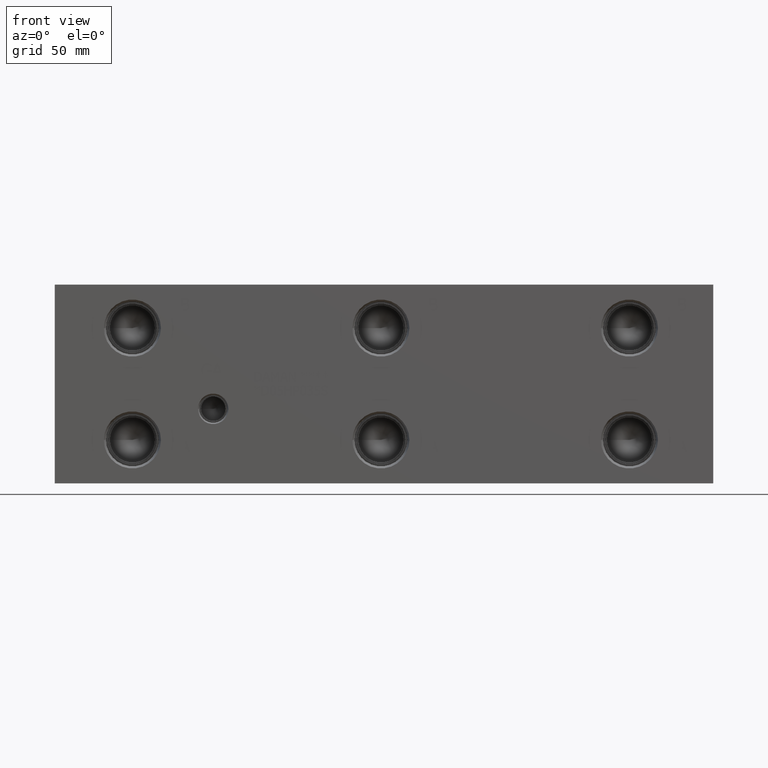
[diagram: clean part render]
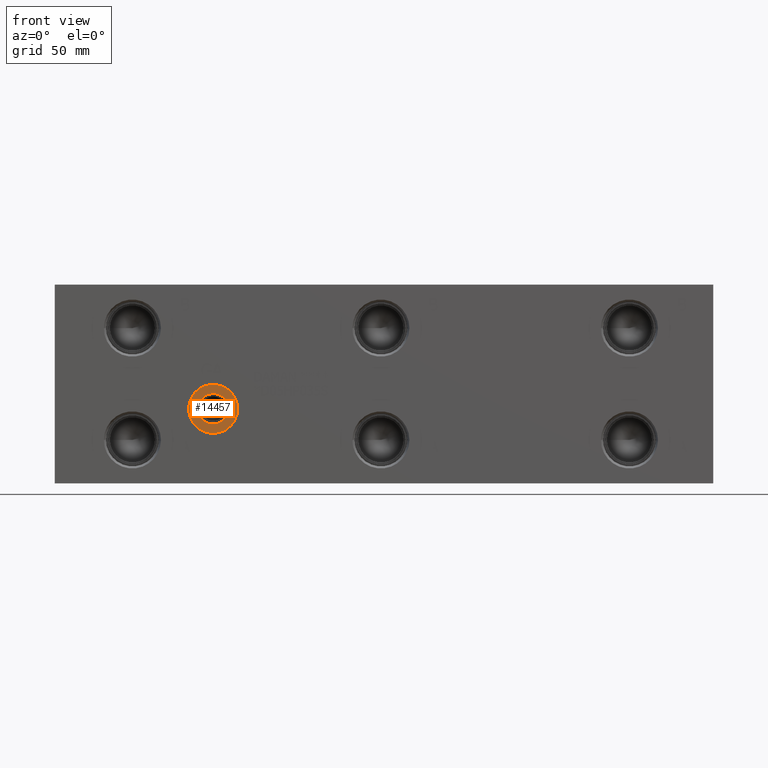
[diagram: same view with one face highlighted and labeled with its STEP entity id]
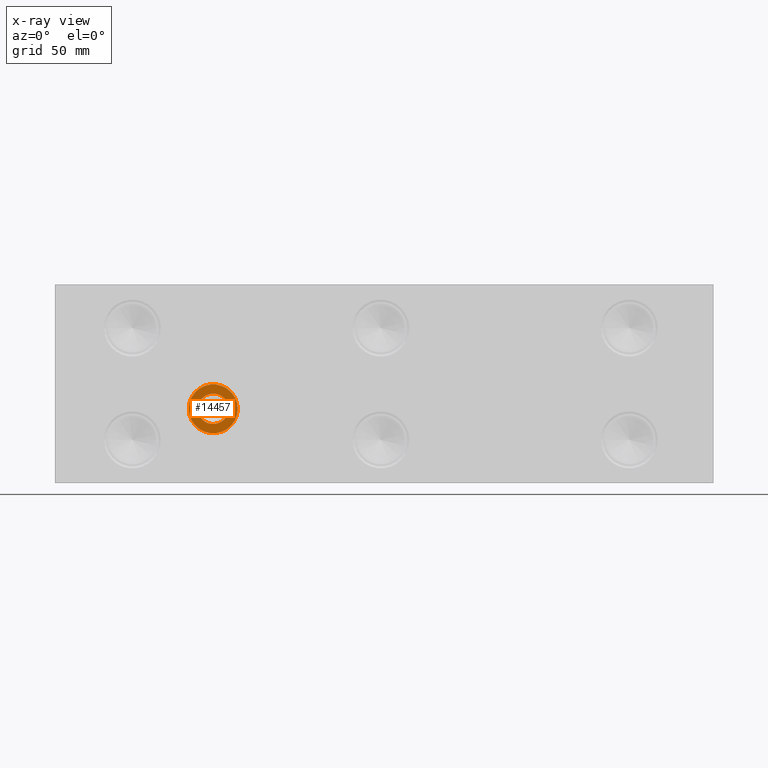
[diagram: x-ray of the same camera — body ghosted, the highlighted face saturated]
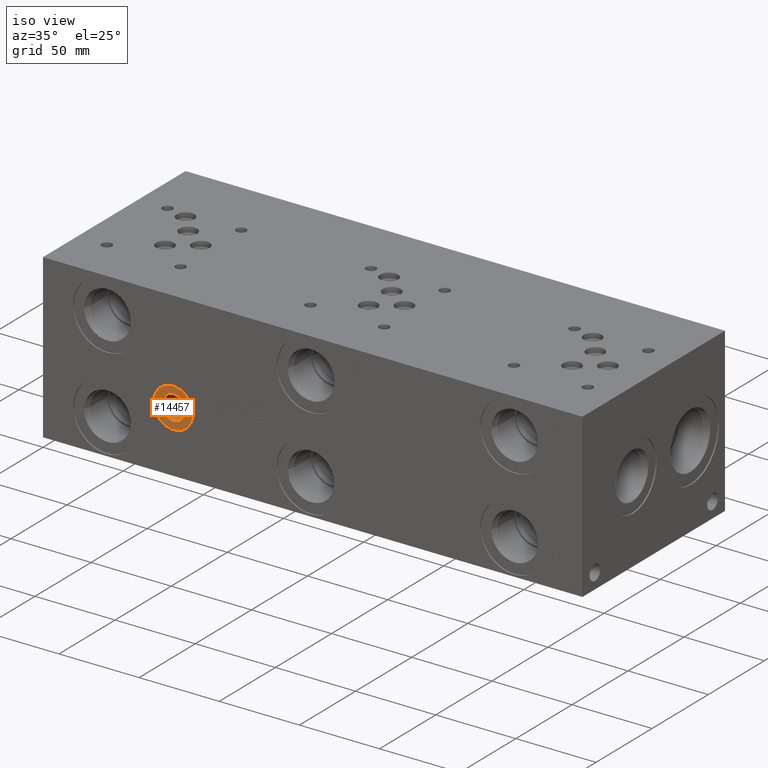
[diagram: same view with one face highlighted and labeled with its STEP entity id]
A machine part, front view. The second image highlights one B-rep face of the part: STEP entity #14457.
The next image is the same camera in x-ray: the body ghosted, the highlighted face saturated — about 0% of this face is hidden behind the body in this view.
A second angle (iso view) of the same face is appended — the face is thin or edge-on in the first view.
In plain terms, the highlighted planar face has unit normal (0, 1, 0).
Its self-contained STEP definition (entity closure, byte-faithful):
#599=CIRCLE('',#15275,12.5095);
#600=CIRCLE('',#15276,12.5095);
#601=CIRCLE('',#15278,7.79780000000001);
#602=CIRCLE('',#15279,7.79780000000001);
#1191=FACE_BOUND('',#2741,.T.);
#1898=FACE_OUTER_BOUND('',#2740,.T.);
#2740=EDGE_LOOP('',(#12434,#12435));
#2741=EDGE_LOOP('',(#12436,#12437));
#6653=VERTEX_POINT('',#24734);
#6654=VERTEX_POINT('',#24736);
#6655=VERTEX_POINT('',#24740);
#6656=VERTEX_POINT('',#24741);
#8629=EDGE_CURVE('',#6653,#6654,#599,.T.);
#8630=EDGE_CURVE('',#6654,#6653,#600,.T.);
#8631=EDGE_CURVE('',#6655,#6656,#601,.T.);
#8632=EDGE_CURVE('',#6656,#6655,#602,.T.);
#12434=ORIENTED_EDGE('',*,*,#8630,.F.);
#12435=ORIENTED_EDGE('',*,*,#8629,.F.);
#12436=ORIENTED_EDGE('',*,*,#8631,.T.);
#12437=ORIENTED_EDGE('',*,*,#8632,.T.);
#13249=PLANE('',#15277);
#14457=ADVANCED_FACE('',(#1898,#1191),#13249,.F.);
#15275=AXIS2_PLACEMENT_3D('',#24737,#18160,#18161);
#15276=AXIS2_PLACEMENT_3D('',#24738,#18162,#18163);
#15277=AXIS2_PLACEMENT_3D('',#24739,#18164,#18165);
#15278=AXIS2_PLACEMENT_3D('',#24742,#18166,#18167);
#15279=AXIS2_PLACEMENT_3D('',#24743,#18168,#18169);
#18160=DIRECTION('center_axis',(0.,1.,0.));
#18161=DIRECTION('ref_axis',(1.,0.,0.));
#18162=DIRECTION('center_axis',(0.,1.,0.));
#18163=DIRECTION('ref_axis',(1.,0.,0.));
#18164=DIRECTION('center_axis',(0.,1.,0.));
#18165=DIRECTION('ref_axis',(0.,0.,1.));
#18166=DIRECTION('center_axis',(0.,1.,0.));
#18167=DIRECTION('ref_axis',(1.,0.,0.));
#18168=DIRECTION('center_axis',(0.,1.,0.));
#18169=DIRECTION('ref_axis',(1.,0.,0.));
#24734=CARTESIAN_POINT('',(68.4657,0.7874,38.1));
#24736=CARTESIAN_POINT('',(93.4847,0.7874,38.1));
#24737=CARTESIAN_POINT('Origin',(80.9752,0.7874,38.1));
#24738=CARTESIAN_POINT('Origin',(80.9752,0.7874,38.1));
#24739=CARTESIAN_POINT('Origin',(88.773,0.7874,38.1));
#24740=CARTESIAN_POINT('',(88.773,0.7874,38.1));
#24741=CARTESIAN_POINT('',(73.1774,0.787400000000002,38.1));
#24742=CARTESIAN_POINT('Origin',(80.9752,0.7874,38.1));
#24743=CARTESIAN_POINT('Origin',(80.9752,0.7874,38.1));